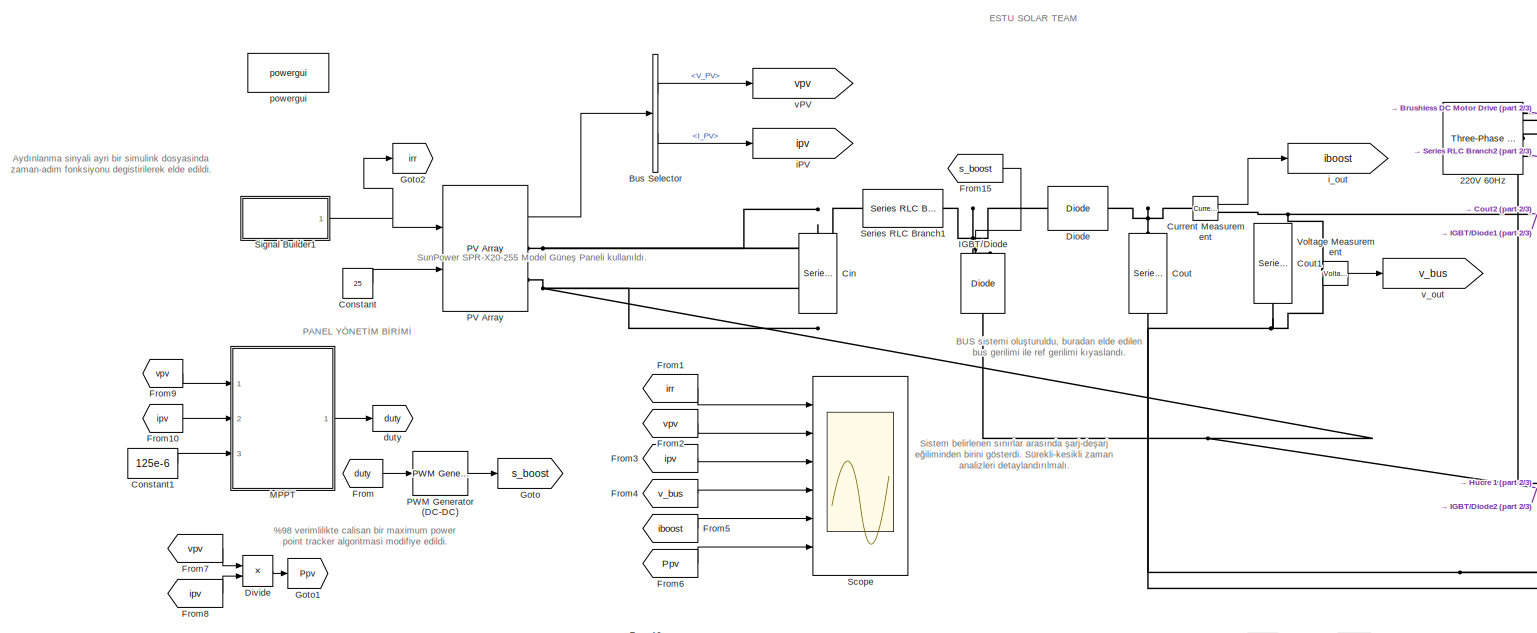
[diagram: root canvas - part 1/3, central region]
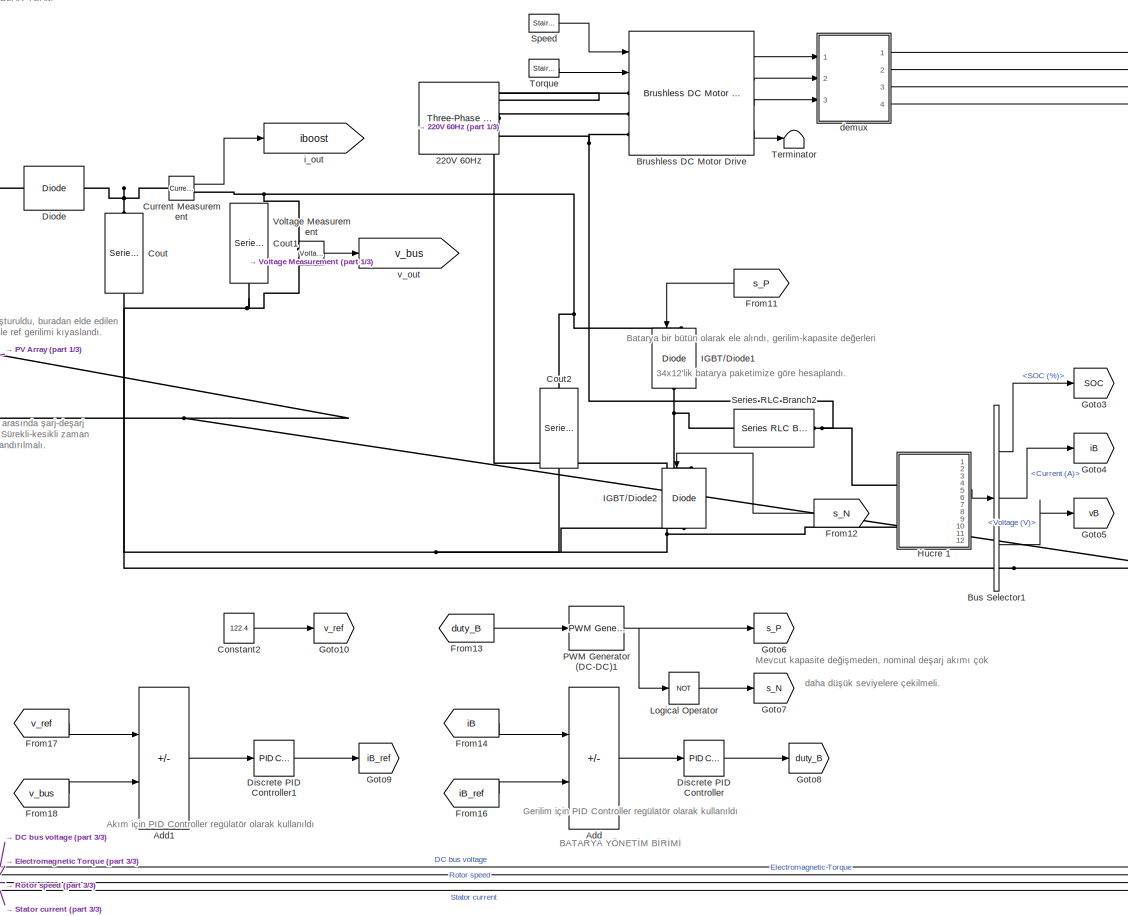
[diagram: root canvas - part 2/3, right side, full height]
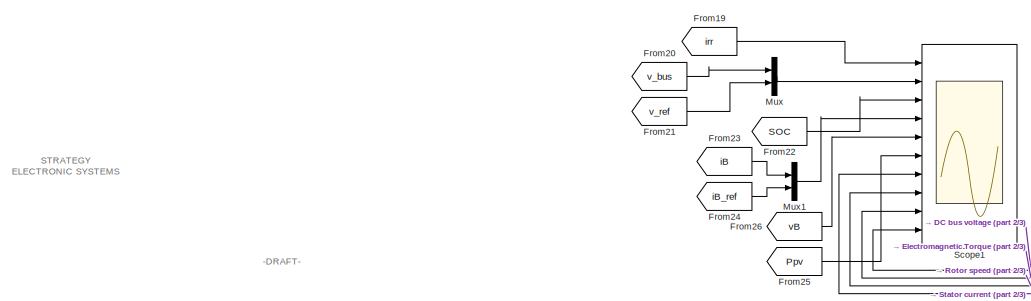
[diagram: root canvas - part 3/3, bottom left region]
MODEL slx_f7f46192d8dc
KIND model
CONFIG AbsTol = auto
CONFIG EnableMultiTasking = off
CONFIG FixedStep = auto
CONFIG MaxStep = auto
CONFIG MinStep = auto
CONFIG RelTol = 1e-3
CONFIG SampleTimeConstraint = Unconstrained
CONFIG Solver = VariableStepAuto
CONFIG SolverName = VariableStepAuto
CONFIG StartTime = 0.0
CONFIG StopTime = 5
BLOCK [Reference] 220V 60Hz  REF=powerlib/Electrical
Sources/Three-Phase Source
  Ports = [0, 0, 0, 0, 0, 0, 3]
  SourceBlock = powerlib/Electrical\nSources/Three-Phase Source
  SourceProductBaseCode = MT,PS
  SourceType = Three-Phase Source
BLOCK [Sum] Add
  IconShape = rectangular
  Inputs = +-
  Ports = [2, 1]
BLOCK [Sum] Add1
  IconShape = rectangular
  Inputs = +-
  Ports = [2, 1]
BLOCK [Reference] Brushless DC Motor Drive  REF=electricdrivelib/AC drives/Brushless DC Motor Drive
  Ports = [2, 4, 0, 0, 0, 3]
  SourceBlock = electricdrivelib/AC drives/Brushless DC Motor Drive
  SourceProductBaseCode = PS
  SourceType = Brushless DC Motor Drive
BLOCK [BusSelector] Bus Selector
  OutputSignals = V_PV,I_PV
  Ports = [1, 2]
BLOCK [BusSelector] Bus Selector1
  OutputSignals = SOC (%),Current (A),Voltage (V)
  Ports = [1, 3]
BLOCK [Reference] Cin  REF=powerlib/Elements/Series RLC Branch
  NameLocation = left
  Ports = [0, 0, 0, 0, 0, 1, 1]
  SourceBlock = powerlib/Elements/Series RLC Branch
  SourceProductBaseCode = PS
  SourceType = Series RLC Branch
BLOCK [Constant] Constant
  Value = 25
BLOCK [Constant] Constant1
  Value = 125e-6
BLOCK [Constant] Constant2
  Value = 122.4
BLOCK [Reference] Cout  REF=powerlib/Elements/Series RLC Branch
  NameLocation = left
  Ports = [0, 0, 0, 0, 0, 1, 1]
  SourceBlock = powerlib/Elements/Series RLC Branch
  SourceProductBaseCode = PS
  SourceType = Series RLC Branch
BLOCK [Reference] Cout1  REF=powerlib/Elements/Series RLC Branch
  NameLocation = left
  Ports = [0, 0, 0, 0, 0, 1, 1]
  SourceBlock = powerlib/Elements/Series RLC Branch
  SourceProductBaseCode = PS
  SourceType = Series RLC Branch
BLOCK [Reference] Cout2  REF=powerlib/Elements/Series RLC Branch
  NameLocation = left
  Ports = [0, 0, 0, 0, 0, 1, 1]
  SourceBlock = powerlib/Elements/Series RLC Branch
  SourceProductBaseCode = PS
  SourceType = Series RLC Branch
BLOCK [Reference] Current Measurement  REF=powerlib/Measurements/Current Measurement
  Ports = [0, 1, 0, 0, 0, 1, 1]
  SourceBlock = powerlib/Measurements/Current Measurement
  SourceProductBaseCode = PS
  SourceType = Current Measurement
  UserDataPersistent = on
BLOCK [Reference] Diode  REF=powerlib/Power
Electronics/Diode
  Ports = [0, 0, 0, 0, 0, 1, 1]
  SourceBlock = powerlib/Power\nElectronics/Diode
  SourceProductBaseCode = PS
  SourceType = Diode
BLOCK [Reference] Discrete PID Controller  REF=simulink/Continuous/PID Controller
  Ports = [1, 1]
  SourceBlock = simulink/Continuous/PID Controller
  SourceProductBaseCode = SL
  SourceType = PID 1dof
BLOCK [Reference] Discrete PID Controller1  REF=simulink/Continuous/PID Controller
  Ports = [1, 1]
  SourceBlock = simulink/Continuous/PID Controller
  SourceProductBaseCode = SL
  SourceType = PID 1dof
BLOCK [Product] Divide
  Inputs = **
  Ports = [2, 1]
BLOCK [From] From
  GotoTag = duty
BLOCK [From] From1
  GotoTag = irr
BLOCK [From] From10
  GotoTag = ipv
BLOCK [From] From11
  GotoTag = s_P
BLOCK [From] From12
  GotoTag = s_N
BLOCK [From] From13
  GotoTag = duty_B
BLOCK [From] From14
  GotoTag = iB
BLOCK [From] From15
  GotoTag = s_boost
BLOCK [From] From16
  GotoTag = iB_ref
BLOCK [From] From17
  GotoTag = v_ref
BLOCK [From] From18
  GotoTag = v_bus
BLOCK [From] From19
  GotoTag = irr
BLOCK [From] From2
  GotoTag = vpv
BLOCK [From] From20
  GotoTag = v_bus
BLOCK [From] From21
  GotoTag = v_ref
BLOCK [From] From22
  GotoTag = SOC
BLOCK [From] From23
  GotoTag = iB
BLOCK [From] From24
  GotoTag = iB_ref
BLOCK [From] From25
  GotoTag = Ppv
BLOCK [From] From26
  GotoTag = vB
BLOCK [From] From3
  GotoTag = ipv
BLOCK [From] From4
  GotoTag = v_bus
BLOCK [From] From5
  GotoTag = iboost
BLOCK [From] From6
  GotoTag = Ppv
BLOCK [From] From7
  GotoTag = vpv
BLOCK [From] From8
  GotoTag = ipv
BLOCK [From] From9
  GotoTag = vpv
BLOCK [Goto] Goto
  GotoTag = s_boost
BLOCK [Goto] Goto1
  GotoTag = Ppv
BLOCK [Goto] Goto10
  GotoTag = v_ref
BLOCK [Goto] Goto2
  GotoTag = irr
BLOCK [Goto] Goto3
  GotoTag = SOC
BLOCK [Goto] Goto4
  GotoTag = iB
BLOCK [Goto] Goto5
  GotoTag = vB
BLOCK [Goto] Goto6
  GotoTag = s_P
BLOCK [Goto] Goto7
  GotoTag = s_N
BLOCK [Goto] Goto8
  GotoTag = duty_B
BLOCK [Goto] Goto9
  GotoTag = iB_ref
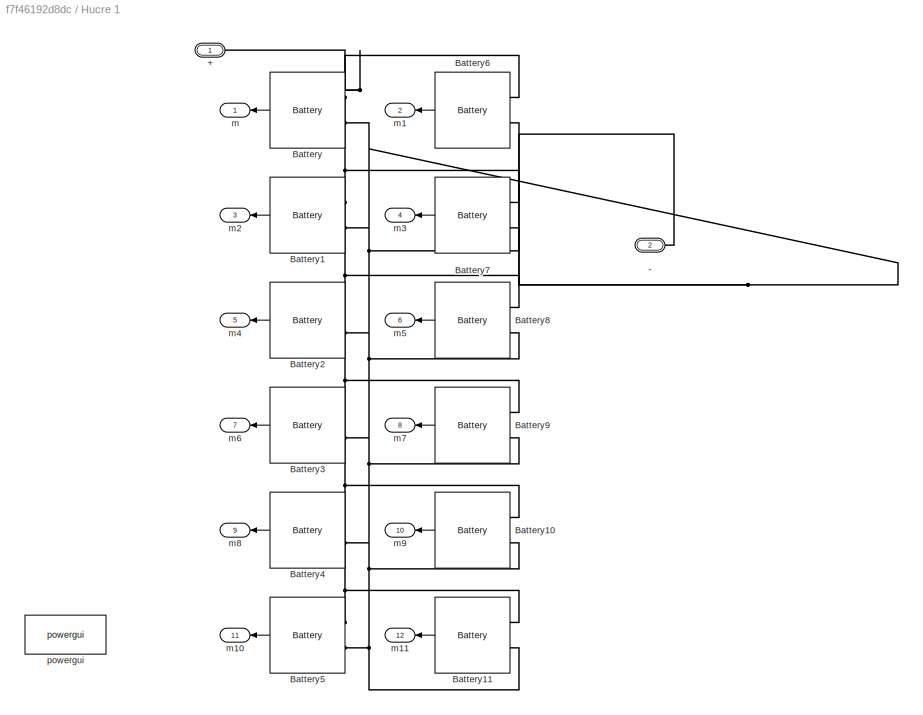
BLOCK [SubSystem] Hucre 1
  Ports = [0, 12, 0, 0, 0, 2]
  RequestExecContextInheritance = off
BLOCK [PMIOPort] Hucre 1/+
  Side = Left
BLOCK [PMIOPort] Hucre 1/-
  Port = 2
  Side = Left
BLOCK [Reference] Hucre 1/Battery  REF=electricdrivelib/Extra Sources/Battery
  Ports = [0, 1, 0, 0, 0, 2]
  SourceBlock = electricdrivelib/Extra Sources/Battery
  SourceProductBaseCode = PS
  SourceType = Battery
BLOCK [Reference] Hucre 1/Battery1  REF=electricdrivelib/Extra Sources/Battery
  Ports = [0, 1, 0, 0, 0, 2]
  SourceBlock = electricdrivelib/Extra Sources/Battery
  SourceProductBaseCode = PS
  SourceType = Battery
BLOCK [Reference] Hucre 1/Battery10  REF=electricdrivelib/Extra Sources/Battery
  Ports = [0, 1, 0, 0, 0, 2]
  SourceBlock = electricdrivelib/Extra Sources/Battery
  SourceProductBaseCode = PS
  SourceType = Battery
BLOCK [Reference] Hucre 1/Battery11  REF=electricdrivelib/Extra Sources/Battery
  Ports = [0, 1, 0, 0, 0, 2]
  SourceBlock = electricdrivelib/Extra Sources/Battery
  SourceProductBaseCode = PS
  SourceType = Battery
BLOCK [Reference] Hucre 1/Battery2  REF=electricdrivelib/Extra Sources/Battery
  Ports = [0, 1, 0, 0, 0, 2]
  SourceBlock = electricdrivelib/Extra Sources/Battery
  SourceProductBaseCode = PS
  SourceType = Battery
BLOCK [Reference] Hucre 1/Battery3  REF=electricdrivelib/Extra Sources/Battery
  Ports = [0, 1, 0, 0, 0, 2]
  SourceBlock = electricdrivelib/Extra Sources/Battery
  SourceProductBaseCode = PS
  SourceType = Battery
BLOCK [Reference] Hucre 1/Battery4  REF=electricdrivelib/Extra Sources/Battery
  Ports = [0, 1, 0, 0, 0, 2]
  SourceBlock = electricdrivelib/Extra Sources/Battery
  SourceProductBaseCode = PS
  SourceType = Battery
BLOCK [Reference] Hucre 1/Battery5  REF=electricdrivelib/Extra Sources/Battery
  Ports = [0, 1, 0, 0, 0, 2]
  SourceBlock = electricdrivelib/Extra Sources/Battery
  SourceProductBaseCode = PS
  SourceType = Battery
BLOCK [Reference] Hucre 1/Battery6  REF=electricdrivelib/Extra Sources/Battery
  Ports = [0, 1, 0, 0, 0, 2]
  SourceBlock = electricdrivelib/Extra Sources/Battery
  SourceProductBaseCode = PS
  SourceType = Battery
BLOCK [Reference] Hucre 1/Battery7  REF=electricdrivelib/Extra Sources/Battery
  Ports = [0, 1, 0, 0, 0, 2]
  SourceBlock = electricdrivelib/Extra Sources/Battery
  SourceProductBaseCode = PS
  SourceType = Battery
BLOCK [Reference] Hucre 1/Battery8  REF=electricdrivelib/Extra Sources/Battery
  Ports = [0, 1, 0, 0, 0, 2]
  SourceBlock = electricdrivelib/Extra Sources/Battery
  SourceProductBaseCode = PS
  SourceType = Battery
BLOCK [Reference] Hucre 1/Battery9  REF=electricdrivelib/Extra Sources/Battery
  Ports = [0, 1, 0, 0, 0, 2]
  SourceBlock = electricdrivelib/Extra Sources/Battery
  SourceProductBaseCode = PS
  SourceType = Battery
BLOCK [Outport] Hucre 1/m
BLOCK [Outport] Hucre 1/m1
  Port = 2
BLOCK [Outport] Hucre 1/m10
  Port = 11
BLOCK [Outport] Hucre 1/m11
  Port = 12
BLOCK [Outport] Hucre 1/m2
  Port = 3
BLOCK [Outport] Hucre 1/m3
  Port = 4
BLOCK [Outport] Hucre 1/m4
  Port = 5
BLOCK [Outport] Hucre 1/m5
  Port = 6
BLOCK [Outport] Hucre 1/m6
  Port = 7
BLOCK [Outport] Hucre 1/m7
  Port = 8
BLOCK [Outport] Hucre 1/m8
  Port = 9
BLOCK [Outport] Hucre 1/m9
  Port = 10
BLOCK [Reference] Hucre 1/powergui  REF=powerlib/powergui
  Ports = []
  Priority = 1
  SourceBlock = powerlib/powergui
  SourceProductBaseCode = PS
  SourceType = PSB option menu block
BLOCK [Reference] IGBT//Diode  REF=powerlib/Power
Electronics/IGBT//Diode
  NameLocation = left
  Ports = [1, 0, 0, 0, 0, 1, 1]
  SourceBlock = powerlib/Power\nElectronics/IGBT//Diode
  SourceProductBaseCode = PS
  SourceType = IGBT/Diode
BLOCK [Reference] IGBT//Diode1  REF=powerlib/Power
Electronics/IGBT//Diode
  NameLocation = left
  Ports = [1, 0, 0, 0, 0, 1, 1]
  SourceBlock = powerlib/Power\nElectronics/IGBT//Diode
  SourceProductBaseCode = PS
  SourceType = IGBT/Diode
BLOCK [Reference] IGBT//Diode2  REF=powerlib/Power
Electronics/IGBT//Diode
  NameLocation = left
  Ports = [1, 0, 0, 0, 0, 1, 1]
  SourceBlock = powerlib/Power\nElectronics/IGBT//Diode
  SourceProductBaseCode = PS
  SourceType = IGBT/Diode
BLOCK [Logic] Logical Operator
  AllPortsSameDT = off
  Operator = NOT
  OutDataTypeStr = boolean
  Ports = [1, 1]
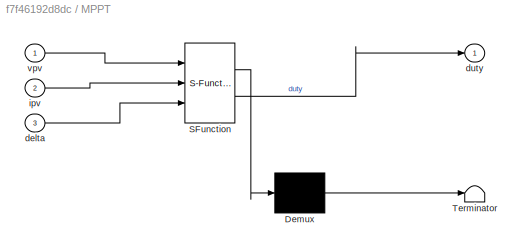
BLOCK [SubSystem] MPPT
  ErrorFcn = Stateflow.Translate.translate
  PermitHierarchicalResolution = ExplicitOnly
  Ports = [3, 1]
  RequestExecContextInheritance = off
  SFBlockType = MATLAB Function
  TreatAsAtomicUnit = on
BLOCK [Demux] MPPT/ Demux 
  Outputs = 1
  Ports = [1, 1]
BLOCK [S-Function] MPPT/ SFunction 
  EnableBusSupport = on
  FunctionName = sf_sfun
  PortCounts = [3 2]
  Ports = [3, 2]
  SFcnIsStateOwnerBlock = off
  SFunctionDeploymentMode = off
  Tag = Stateflow S-Function 2
BLOCK [Terminator] MPPT/ Terminator 
BLOCK [Inport] MPPT/delta
  Port = 3
BLOCK [Outport] MPPT/duty
BLOCK [Inport] MPPT/ipv
  Port = 2
BLOCK [Inport] MPPT/vpv
BLOCK [Mux] Mux
  DisplayOption = bar
  Inputs = 2
  Ports = [2, 1]
BLOCK [Mux] Mux1
  DisplayOption = bar
  Inputs = 2
  Ports = [2, 1]
BLOCK [Reference] PV Array  REF=re_lib/Solar/PV Array
  Ports = [2, 1, 0, 0, 0, 0, 2]
  SourceBlock = re_lib/Solar/PV Array
  SourceProductBaseCode = PS
  SourceType = PV array
BLOCK [Reference] PWM Generator (DC-DC)  REF=powerlib_meascontrol/Pulse & Signal
Generators/PWM Generator
(DC-DC)
  Ports = [1, 1]
  SourceBlock = powerlib_meascontrol/Pulse & Signal\nGenerators/PWM Generator\n(DC-DC)
  SourceProductBaseCode = PS
  SourceType = PWM Generator (DC-DC)
BLOCK [Reference] PWM Generator (DC-DC)1  REF=powerlib_meascontrol/Pulse & Signal
Generators/PWM Generator
(DC-DC)
  Ports = [1, 1]
  SourceBlock = powerlib_meascontrol/Pulse & Signal\nGenerators/PWM Generator\n(DC-DC)
  SourceProductBaseCode = PS
  SourceType = PWM Generator (DC-DC)
BLOCK [Scope] Scope
  Floating = off
  NumInputPorts = 6
  Ports = [6]
  ScopeSpecificationString = Simulink.scopes.TimeScopeBlockCfg('CurrentConfiguration', extmgr.ConfigurationSet(extmgr.Configuration('Core','General UI',true),extmgr.Configuration('Core','Source UI',true),extmgr.Configuration('Sources','WiredSimulink',true),extmgr.Configuration('Visuals','Time Domain',true,'SerializedDisplays',{struct('MinYLimReal','-120.1655','MaxYLimReal','1083.41617','YLabelReal','','MinYLimMag',' 0.00000',...<+4743ch>
BLOCK [Scope] Scope1
  Floating = off
  NumInputPorts = 10
  Ports = [10]
  ScopeSpecificationString = Simulink.scopes.TimeScopeBlockCfg('CurrentConfiguration', extmgr.ConfigurationSet(extmgr.Configuration('Core','General UI',true,'FigureColor',[0.972549019607843 0.972549019607843 0.972549019607843]),extmgr.Configuration('Core','Source UI',true),extmgr.Configuration('Sources','WiredSimulink',true,'DataLoggingVariableName','ScopeData1'),extmgr.Configuration('Visuals','Time Domain',true,'SerializedDi...<+16365ch>
BLOCK [Reference] Series RLC Branch1  REF=powerlib/Elements/Series RLC Branch
  Ports = [0, 0, 0, 0, 0, 1, 1]
  SourceBlock = powerlib/Elements/Series RLC Branch
  SourceProductBaseCode = PS
  SourceType = Series RLC Branch
BLOCK [Reference] Series RLC Branch2  REF=powerlib/Elements/Series RLC Branch
  Ports = [0, 0, 0, 0, 0, 1, 1]
  SourceBlock = powerlib/Elements/Series RLC Branch
  SourceProductBaseCode = PS
  SourceType = Series RLC Branch
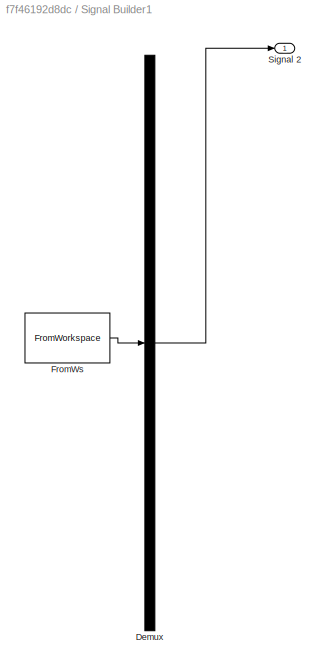
BLOCK [SubSystem] Signal Builder1
  ClipboardFcn = sigbuilder_block('clipboard');
  CloseFcn = sigbuilder_block('close');
  ContinueFcn = sigbuilder_block('continue');
  CopyFcn = sigbuilder_block('copy');
  DeleteFcn = sigbuilder_block('delete');
  LoadFcn = sigbuilder_block('load');
  MaskHideContents = on
  ModelCloseFcn = sigbuilder_block('modelClose');
  NameChangeFcn = sigbuilder_block('namechange');
  OpenFcn = sigbuilder_block('open',[437.6 199.2 550.4 400 ]);
  PauseFcn = sigbuilder_block('pause');
  Ports = [0, 1]
  PreSaveFcn = sigbuilder_block('preSave');
  RequestExecContextInheritance = off
  StartFcn = sigbuilder_block('start');
  StopFcn = sigbuilder_block('stop');
  Tag = STV Subsys
BLOCK [Demux] Signal Builder1/Demux
  DisplayOption = none
  Outputs = 1
  Ports = [1, 1]
  Tag = STV Demux
BLOCK [FromWorkspace] Signal Builder1/FromWs
  Tag = STV FromWs
  VariableName = tuvar
BLOCK [Outport] Signal Builder1/Signal 2
  Tag = STV Outport
BLOCK [Reference] Speed  REF=powerlib_meascontrol/Pulse & Signal
Generators/Stair
Generator
  Ports = [0, 1]
  SourceBlock = powerlib_meascontrol/Pulse & Signal\nGenerators/Stair\nGenerator
  SourceProductBaseCode = MT,PS
  SourceType = Stair Generator
BLOCK [Terminator] Terminator
BLOCK [Reference] Torque  REF=powerlib_meascontrol/Pulse & Signal
Generators/Stair
Generator
  Ports = [0, 1]
  SourceBlock = powerlib_meascontrol/Pulse & Signal\nGenerators/Stair\nGenerator
  SourceProductBaseCode = MT,PS
  SourceType = Stair Generator
BLOCK [Reference] Voltage Measurement  REF=powerlib/Measurements/Voltage Measurement
  Ports = [0, 1, 0, 0, 0, 2]
  SourceBlock = powerlib/Measurements/Voltage Measurement
  SourceProductBaseCode = PS
  SourceType = Voltage Measurement
  UserDataPersistent = on
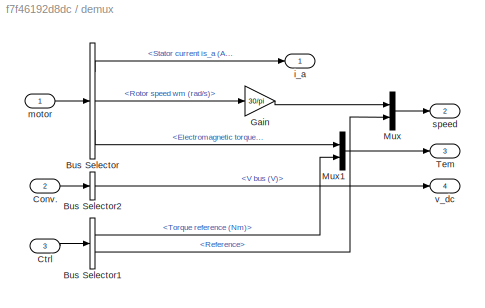
BLOCK [SubSystem] demux
  Ports = [3, 4]
  RequestExecContextInheritance = off
BLOCK [BusSelector] demux/Bus Selector
  OutputSignals = Stator current is_a (A),Rotor speed wm (rad/s),Electromagnetic torque Te (N*m)
  Ports = [1, 3]
BLOCK [BusSelector] demux/Bus Selector1
  OutputSignals = Torque reference (Nm),Reference
  Ports = [1, 2]
BLOCK [BusSelector] demux/Bus Selector2
  OutputSignals = V bus (V)
  Ports = [1, 1]
BLOCK [Inport] demux/Conv.
  Port = 2
BLOCK [Inport] demux/Ctrl
  Port = 3
BLOCK [Gain] demux/Gain
  Gain = 30/pi
  OutDataTypeStr = Inherit: Same as input
  ParamDataTypeStr = Inherit: Same as input
  SaturateOnIntegerOverflow = on
BLOCK [Mux] demux/Mux
  DisplayOption = bar
  Inputs = 2
  Ports = [2, 1]
BLOCK [Mux] demux/Mux1
  DisplayOption = bar
  Inputs = 2
  Ports = [2, 1]
BLOCK [Outport] demux/Tem
  Port = 3
  VectorParamsAs1DForOutWhenUnconnected = off
BLOCK [Outport] demux/i_a
  VectorParamsAs1DForOutWhenUnconnected = off
BLOCK [Inport] demux/motor
BLOCK [Outport] demux/speed
  NameLocation = top
  Port = 2
  VectorParamsAs1DForOutWhenUnconnected = off
BLOCK [Outport] demux/v_dc
  Port = 4
  VectorParamsAs1DForOutWhenUnconnected = off
BLOCK [Goto] duty
  GotoTag = duty
BLOCK [Goto] iPV
  GotoTag = ipv
BLOCK [Goto] i_out
  GotoTag = iboost
BLOCK [Reference] powergui  REF=powerlib/powergui
  Ports = []
  Priority = 1
  SourceBlock = powerlib/powergui
  SourceProductBaseCode = PS
  SourceType = PSB option menu block
BLOCK [Goto] vPV
  GotoTag = vpv
BLOCK [Goto] v_out
  GotoTag = v_bus
ANNOTATION (root): Mevcut kapasite değişmeden, nominal deşarj akımı çok daha düşük seviyelere çekilmeli.
ANNOTATION (root): Akım için PID Controller regülatör olarak kullanıldı
ANNOTATION (root): %98 verimlilikte calisan bir maximum power point tracker algoritmasi modifiye edildi .
ANNOTATION (root): Gerilim için PID Controller regülatör olarak kullanıldı
ANNOTATION (root): BUS sistemi oluşturuldu, buradan elde edilen bus gerilimi ile ref gerilimi kıyaslandı.
ANNOTATION (root): Aydınlanma sinyali ayri bir simulink dosyasinda zaman-adim fonksiyonu degistirilerek elde edild i.
ANNOTATION (root): Sistem belirlenen sınırlar arasında şarj-deşarj eğiliminden birini gösterdi. Sürekli-kesikli zaman analizleri detaylandırılmalı.
ANNOTATION (root): Batarya bir bütün olarak ele alındı, gerilim-kapasite değerleri 34x12'lik batarya paketimize göre hesaplandı .
ANNOTATION (root): ESTU SOLAR TEAM
ANNOTATION (root): BATARYA YÖNETİM BİRİMİ
ANNOTATION (root): PANEL YÖNETİM BİRİMİ
ANNOTATION (root): -DRAFT-
ANNOTATION (root): STRATEGY ELECTRONIC SYSTEMS
ANNOTATION (root): SunPower SPR-X20-255 Model Güneş Paneli kullanıldı.
LINE Add1:1 -> Discrete PID Controller1:1
LINE Add:1 -> Discrete PID Controller:1
LINE Brushless DC Motor Drive:1 -> demux:1
LINE Brushless DC Motor Drive:2 -> demux:2
LINE Brushless DC Motor Drive:3 -> demux:3
LINE Brushless DC Motor Drive:4 -> Terminator:1
LINE Bus Selector1:1 -> Goto3:1
LINE Bus Selector1:2 -> Goto4:1
LINE Bus Selector1:3 -> Goto5:1
LINE Bus Selector:1 -> vPV:1
LINE Bus Selector:2 -> iPV:1
LINE Constant1:1 -> MPPT:3
LINE Constant2:1 -> Goto10:1
LINE Constant:1 -> PV Array:2
LINE Current Measurement:1 -> i_out:1
LINE Discrete PID Controller1:1 -> Goto9:1
LINE Discrete PID Controller:1 -> Goto8:1
LINE Divide:1 -> Goto1:1
LINE From10:1 -> MPPT:2
LINE From11:1 -> IGBT//Diode1:1
LINE From12:1 -> IGBT//Diode2:1
LINE From13:1 -> PWM Generator (DC-DC)1:1
LINE From14:1 -> Add:1
LINE From15:1 -> IGBT//Diode:1
LINE From16:1 -> Add:2
LINE From17:1 -> Add1:1
LINE From18:1 -> Add1:2
LINE From19:1 -> Scope1:1
LINE From1:1 -> Scope:1
LINE From20:1 -> Mux:1
LINE From21:1 -> Mux:2
LINE From22:1 -> Scope1:3
LINE From23:1 -> Mux1:1
LINE From24:1 -> Mux1:2
LINE From25:1 -> Scope1:6
LINE From26:1 -> Scope1:5
LINE From2:1 -> Scope:2
LINE From3:1 -> Scope:3
LINE From4:1 -> Scope:4
LINE From5:1 -> Scope:5
LINE From6:1 -> Scope:6
LINE From7:1 -> Divide:1
LINE From8:1 -> Divide:2
LINE From9:1 -> MPPT:1
LINE From:1 -> PWM Generator (DC-DC):1
LINE Hucre 1/Battery10:1 -> Hucre 1/m9:1
LINE Hucre 1/Battery11:1 -> Hucre 1/m11:1
LINE Hucre 1/Battery1:1 -> Hucre 1/m2:1
LINE Hucre 1/Battery2:1 -> Hucre 1/m4:1
LINE Hucre 1/Battery3:1 -> Hucre 1/m6:1
LINE Hucre 1/Battery4:1 -> Hucre 1/m8:1
LINE Hucre 1/Battery5:1 -> Hucre 1/m10:1
LINE Hucre 1/Battery6:1 -> Hucre 1/m1:1
LINE Hucre 1/Battery7:1 -> Hucre 1/m3:1
LINE Hucre 1/Battery8:1 -> Hucre 1/m5:1
LINE Hucre 1/Battery9:1 -> Hucre 1/m7:1
LINE Hucre 1/Battery:1 -> Hucre 1/m:1
LINE Hucre 1:5 -> Bus Selector1:1
LINE Logical Operator:1 -> Goto7:1
LINE MPPT:1 -> duty:1
LINE Mux1:1 -> Scope1:4
LINE Mux:1 -> Scope1:2
LINE PV Array:1 -> Bus Selector:1
NET PWM Generator (DC-DC)1:1 -> Goto6:1, Logical Operator:1
LINE PWM Generator (DC-DC):1 -> Goto:1
NET Signal Builder1:1 -> Goto2:1, PV Array:1
LINE Speed:1 -> Brushless DC Motor Drive:1
LINE Torque:1 -> Brushless DC Motor Drive:2
LINE Voltage Measurement:1 -> v_out:1
LINE demux/Bus Selector1:1 -> demux/Mux1:2
LINE demux/Bus Selector1:2 -> demux/Mux:2
LINE demux/Bus Selector2:1 -> demux/v_dc:1
LINE demux/Bus Selector:1 -> demux/i_a:1
LINE demux/Bus Selector:2 -> demux/Gain:1
LINE demux/Bus Selector:3 -> demux/Mux1:1
LINE demux/Conv.:1 -> demux/Bus Selector2:1
LINE demux/Ctrl:1 -> demux/Bus Selector1:1
LINE demux/Gain:1 -> demux/Mux:1
LINE demux/Mux1:1 -> demux/Tem:1
LINE demux/Mux:1 -> demux/speed:1
LINE demux/motor:1 -> demux/Bus Selector:1
LINE demux:1 -> Scope1:7
LINE demux:2 -> Scope1:8
LINE demux:3 -> Scope1:9
LINE demux:4 -> Scope1:10
PNET net1: 220V 60Hz:RConn1 -- Brushless DC Motor Drive:LConn1 -- Cin:RConn1 -- Cout1:RConn1 -- Cout2:RConn1 -- Cout:RConn1 -- Hucre 1:LConn2 -- IGBT//Diode2:RConn1 -- IGBT//Diode:RConn1 -- PV Array:RConn2 -- Voltage Measurement:LConn2
PLINE 220V 60Hz:RConn2 -- Brushless DC Motor Drive:LConn2
PNET net2: 220V 60Hz:RConn3 -- Brushless DC Motor Drive:LConn3 -- Hucre 1:LConn1 -- Series RLC Branch2:RConn1
PNET net3: Cin:LConn1 -- PV Array:RConn1 -- Series RLC Branch1:LConn1
PNET net4: Cout2:LConn1 -- Current Measurement:RConn1 -- IGBT//Diode1:LConn1 -- Voltage Measurement:LConn1
PNET net5: Cout:LConn1 -- Current Measurement:LConn1 -- Diode:RConn1
PNET net6: Diode:LConn1 -- IGBT//Diode:LConn1 -- Series RLC Branch1:RConn1
PNET net7: Hucre 1/+:RConn1 -- Hucre 1/Battery10:LConn1 -- Hucre 1/Battery11:LConn1 -- Hucre 1/Battery1:LConn1 -- Hucre 1/Battery2:LConn1 -- Hucre 1/Battery3:LConn1 -- Hucre 1/Battery4:LConn1 -- Hucre 1/Battery5:LConn1 -- Hucre 1/Battery6:LConn1 -- Hucre 1/Battery7:LConn1 -- Hucre 1/Battery8:LConn1 -- Hucre 1/Battery9:LConn1 -- Hucre 1/Battery:LConn1
PNET net8: Hucre 1/-:RConn1 -- Hucre 1/Battery10:LConn2 -- Hucre 1/Battery11:LConn2 -- Hucre 1/Battery1:LConn2 -- Hucre 1/Battery2:LConn2 -- Hucre 1/Battery3:LConn2 -- Hucre 1/Battery4:LConn2 -- Hucre 1/Battery5:LConn2 -- Hucre 1/Battery6:LConn2 -- Hucre 1/Battery7:LConn2 -- Hucre 1/Battery8:LConn2 -- Hucre 1/Battery9:LConn2 -- Hucre 1/Battery:LConn2
PNET net9: IGBT//Diode1:RConn1 -- IGBT//Diode2:LConn1 -- Series RLC Branch2:LConn1
note: NET lines group one-source signal fan-out (src -> all destinations, sorted); 1:1 wires keep LINE; PNET lines group multi-terminal physical nets as a canonical sorted terminal list (undirected conserving connections); 2-terminal nets keep the pairwise PLINE form
CHART MPPT states=1 transitions=1
  STATE_LABEL 'eML_blk_kernel()'
  STATE_LABEL 'SCRIPT:\nfunction duty = MPPT_algorithm(vpv,ipv,delta)\nduty_init = 0.1;\n%duty limitlemesi gerceklestirildi\nduty_min=0;\nduty_max=0.85;\npersistent Vold Pold duty_old;\n%veri depolanmasi icin\nif isempty(Vold)\n    Vold=0;\n    Pold=0;\n    duty_old=duty_init;\nend\nP= vpv*ipv; %guc\ndV=vpv-Vold; %gerilim degisimi\ndP=P-Pold; %guc degisimi\nif dP ~= 0 && vpv>30\n    if dP<0\n        if dV<0\n            duty=duty_...<+396ch>'
CHART  states=0 transitions=0
